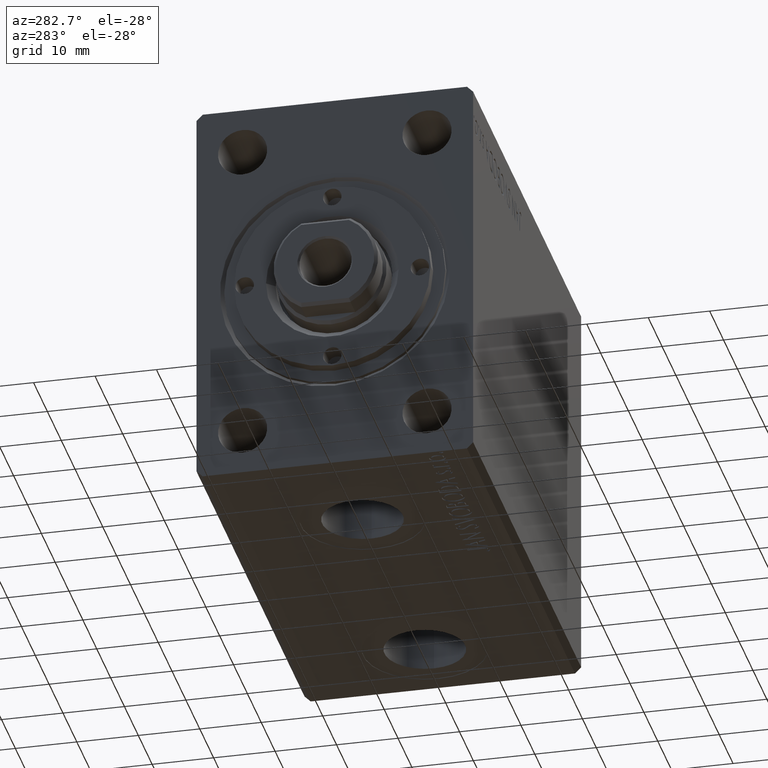
[diagram: clean part render]
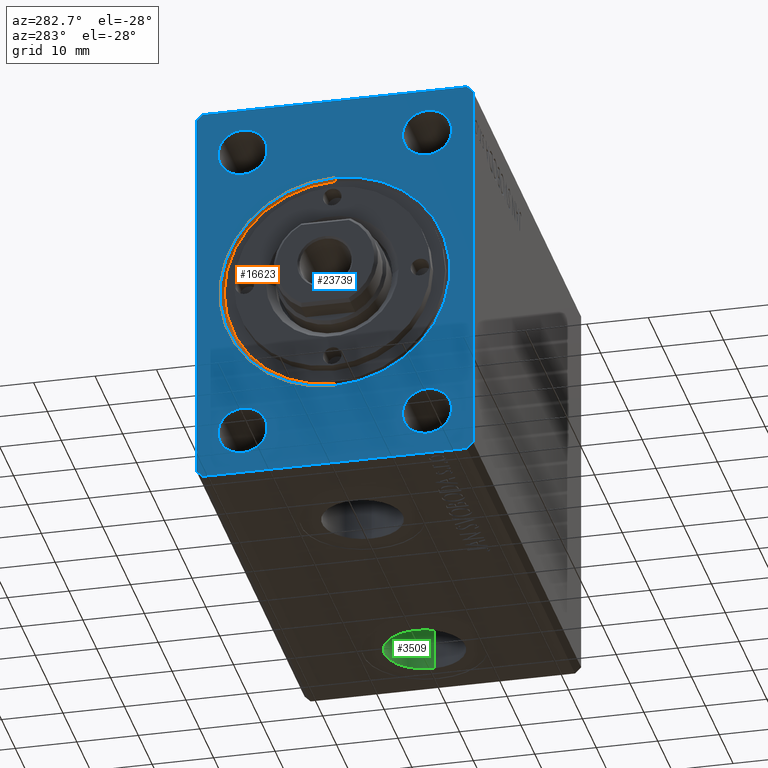
[diagram: same view with three faces highlighted in distinct colors, each labeled with its STEP entity id]
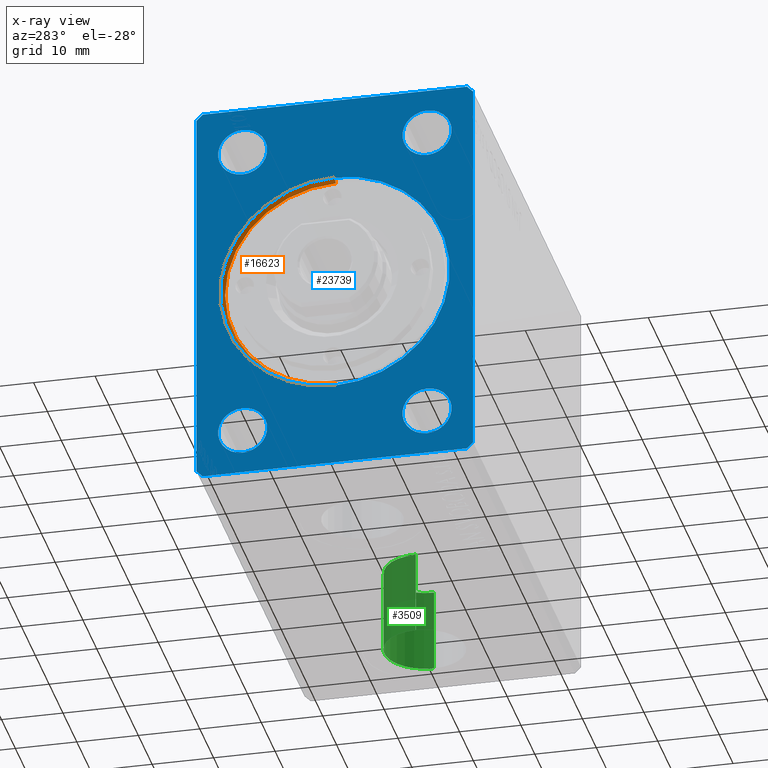
[diagram: x-ray of the same camera — body ghosted, the three highlighted faces saturated]
A machine part, auxiliary view with three faces highlighted in distinct colors.
The next image is the same camera in x-ray (body ghosted, the three faces saturated) — at least one of them is partly hidden behind the body in this view.
Their STEP definitions:

[orange] entity #16623 — the highlighted conical surface has half-angle 45 deg.
#3 = AXIS2_PLACEMENT_3D ( 'NONE', #34715, #3695, #40977 ) ;
#888 = EDGE_LOOP ( 'NONE', ( #7754, #41149, #21707, #6130 ) ) ;
#2691 = VERTEX_POINT ( 'NONE', #36314 ) ;
#2772 = EDGE_CURVE ( 'NONE', #35912, #2691, #23535, .T. ) ;
#2957 = DIRECTION ( 'NONE',  ( -0.7071067811865510144, 0.000000000000000000, 0.7071067811865441310 ) ) ;
#3695 = DIRECTION ( 'NONE',  ( -1.000000000000000000, 0.000000000000000000, 0.000000000000000000 ) ) ;
#4703 = VECTOR ( 'NONE', #2957, 999.9999999999998863 ) ;
#6104 = CONICAL_SURFACE ( 'NONE', #31068, 18.00000000000000000, 0.7853981633974433940 ) ;
#6130 = ORIENTED_EDGE ( 'NONE', *, *, #39234, .F. ) ;
#6763 = CARTESIAN_POINT ( 'NONE',  ( 0.000000000000000000, 2.290089514405561154E-15, -18.70000000000008811 ) ) ;
#6790 = VERTEX_POINT ( 'NONE', #6763 ) ;
#7562 = CIRCLE ( 'NONE', #19001, 18.70000000000008811 ) ;
#7754 = ORIENTED_EDGE ( 'NONE', *, *, #19633, .F. ) ;
#9519 = DIRECTION ( 'NONE',  ( -0.7071067811865510144, 8.659560562354890950E-17, -0.7071067811865441310 ) ) ;
#12979 = DIRECTION ( 'NONE',  ( 0.000000000000000000, 0.000000000000000000, 1.000000000000000000 ) ) ;
#13848 = DIRECTION ( 'NONE',  ( 0.000000000000000000, 0.000000000000000000, -1.000000000000000000 ) ) ;
#16340 = FACE_OUTER_BOUND ( 'NONE', #888, .T. ) ;
#16623 = ADVANCED_FACE ( 'NONE', ( #16340 ), #6104, .F. ) ;
#17648 = VECTOR ( 'NONE', #9519, 999.9999999999998863 ) ;
#17666 = DIRECTION ( 'NONE',  ( 1.000000000000000000, 0.000000000000000000, 0.000000000000000000 ) ) ;
#19001 = AXIS2_PLACEMENT_3D ( 'NONE', #27694, #17666, #13848 ) ;
#19633 = EDGE_CURVE ( 'NONE', #2691, #6790, #26502, .T. ) ;
#20164 = LINE ( 'NONE', #44021, #4703 ) ;
#21707 = ORIENTED_EDGE ( 'NONE', *, *, #33471, .T. ) ;
#22176 = CARTESIAN_POINT ( 'NONE',  ( 0.7000000000000963229, 0.000000000000000000, 18.00000000000000000 ) ) ;
#23535 = CIRCLE ( 'NONE', #3, 18.00000000000000000 ) ;
#26502 = LINE ( 'NONE', #40107, #17648 ) ;
#27694 = CARTESIAN_POINT ( 'NONE',  ( 0.000000000000000000, 0.000000000000000000, 0.000000000000000000 ) ) ;
#30161 = CARTESIAN_POINT ( 'NONE',  ( 0.7000000000000963229, 0.000000000000000000, 0.000000000000000000 ) ) ;
#31068 = AXIS2_PLACEMENT_3D ( 'NONE', #30161, #43122, #12979 ) ;
#33471 = EDGE_CURVE ( 'NONE', #35912, #38205, #20164, .T. ) ;
#34715 = CARTESIAN_POINT ( 'NONE',  ( 0.7000000000000963229, 0.000000000000000000, 0.000000000000000000 ) ) ;
#35093 = CARTESIAN_POINT ( 'NONE',  ( 0.000000000000000000, 0.000000000000000000, 18.70000000000008811 ) ) ;
#35912 = VERTEX_POINT ( 'NONE', #22176 ) ;
#36314 = CARTESIAN_POINT ( 'NONE',  ( 0.7000000000000963229, 2.204364238465235033E-15, -18.00000000000000000 ) ) ;
#38205 = VERTEX_POINT ( 'NONE', #35093 ) ;
#39234 = EDGE_CURVE ( 'NONE', #6790, #38205, #7562, .T. ) ;
#40107 = CARTESIAN_POINT ( 'NONE',  ( 0.7000000000000963229, 2.204364238465235428E-15, -18.00000000000000000 ) ) ;
#40977 = DIRECTION ( 'NONE',  ( 0.000000000000000000, 0.000000000000000000, -1.000000000000000000 ) ) ;
#41149 = ORIENTED_EDGE ( 'NONE', *, *, #2772, .F. ) ;
#43122 = DIRECTION ( 'NONE',  ( -1.000000000000000000, 0.000000000000000000, 0.000000000000000000 ) ) ;
#44021 = CARTESIAN_POINT ( 'NONE',  ( 0.7000000000000963229, 0.000000000000000000, 18.00000000000000000 ) ) ;

[blue] entity #23739 — the highlighted planar face has unit normal (1, 0, 0).
#118 = CARTESIAN_POINT ( 'NONE',  ( 0.000000000000000000, 0.000000000000000000, 0.000000000000000000 ) ) ;
#334 = FACE_BOUND ( 'NONE', #24444, .T. ) ;
#582 = VECTOR ( 'NONE', #3223, 1000.000000000000114 ) ;
#600 = VERTEX_POINT ( 'NONE', #13166 ) ;
#866 = CARTESIAN_POINT ( 'NONE',  ( 3.061616997868395467E-16, 15.00000000000000355, -28.99999999999999289 ) ) ;
#1064 = AXIS2_PLACEMENT_3D ( 'NONE', #22381, #19914, #16780 ) ;
#1082 = AXIS2_PLACEMENT_3D ( 'NONE', #41085, #17448, #13641 ) ;
#1187 = AXIS2_PLACEMENT_3D ( 'NONE', #28367, #41077, #38167 ) ;
#1215 = CARTESIAN_POINT ( 'NONE',  ( 3.061616997868395467E-16, -14.99999999999999645, -20.99999999999999645 ) ) ;
#1762 = ORIENTED_EDGE ( 'NONE', *, *, #23473, .F. ) ;
#2799 = VERTEX_POINT ( 'NONE', #21124 ) ;
#2877 = CARTESIAN_POINT ( 'NONE',  ( 3.061616997868395467E-16, 15.00000000000000355, 29.00000000000000000 ) ) ;
#3086 = VERTEX_POINT ( 'NONE', #12316 ) ;
#3223 = DIRECTION ( 'NONE',  ( 0.000000000000000000, -0.7071067811865474617, -0.7071067811865474617 ) ) ;
#3683 = DIRECTION ( 'NONE',  ( 1.000000000000000000, 0.000000000000000000, 0.000000000000000000 ) ) ;
#3935 = ORIENTED_EDGE ( 'NONE', *, *, #13893, .F. ) ;
#4341 = DIRECTION ( 'NONE',  ( 1.000000000000000000, 0.000000000000000000, 0.000000000000000000 ) ) ;
#4347 = DIRECTION ( 'NONE',  ( 0.000000000000000000, 0.000000000000000000, -1.000000000000000000 ) ) ;
#4355 = VERTEX_POINT ( 'NONE', #866 ) ;
#4561 = DIRECTION ( 'NONE',  ( 0.000000000000000000, 0.000000000000000000, 1.000000000000000000 ) ) ;
#4751 = CARTESIAN_POINT ( 'NONE',  ( 0.000000000000000000, 22.49999999999999645, 31.50000000000000000 ) ) ;
#5457 = EDGE_CURVE ( 'NONE', #27663, #12399, #18638, .T. ) ;
#6122 = CIRCLE ( 'NONE', #14726, 18.70000000000008811 ) ;
#6308 = VERTEX_POINT ( 'NONE', #23802 ) ;
#6322 = ORIENTED_EDGE ( 'NONE', *, *, #17687, .F. ) ;
#6763 = CARTESIAN_POINT ( 'NONE',  ( 0.000000000000000000, 2.290089514405561154E-15, -18.70000000000008811 ) ) ;
#6782 = EDGE_CURVE ( 'NONE', #38367, #6308, #19973, .T. ) ;
#6790 = VERTEX_POINT ( 'NONE', #6763 ) ;
#7029 = FACE_BOUND ( 'NONE', #36456, .T. ) ;
#7356 = CARTESIAN_POINT ( 'NONE',  ( 0.000000000000000000, -22.50000000000001421, -31.50000000000000711 ) ) ;
#7562 = CIRCLE ( 'NONE', #19001, 18.70000000000008811 ) ;
#7700 = FACE_OUTER_BOUND ( 'NONE', #12949, .T. ) ;
#7925 = CARTESIAN_POINT ( 'NONE',  ( 3.061616997868395467E-16, 15.00000000000000355, 25.00000000000000000 ) ) ;
#8878 = ORIENTED_EDGE ( 'NONE', *, *, #19403, .F. ) ;
#9938 = VECTOR ( 'NONE', #31114, 1000.000000000000114 ) ;
#10459 = DIRECTION ( 'NONE',  ( 0.000000000000000000, -1.000000000000000000, 0.000000000000000000 ) ) ;
#11037 = FACE_BOUND ( 'NONE', #39060, .T. ) ;
#11252 = CARTESIAN_POINT ( 'NONE',  ( 0.000000000000000000, -22.50000000000001421, -31.50000000000000711 ) ) ;
#11668 = DIRECTION ( 'NONE',  ( 0.000000000000000000, -0.7071067811865474617, 0.7071067811865474617 ) ) ;
#12053 = DIRECTION ( 'NONE',  ( 0.000000000000000000, 1.000000000000000000, 1.613696256722610912E-16 ) ) ;
#12316 = CARTESIAN_POINT ( 'NONE',  ( 3.061616997868395467E-16, -14.99999999999999645, 20.99999999999999645 ) ) ;
#12399 = VERTEX_POINT ( 'NONE', #40901 ) ;
#12568 = AXIS2_PLACEMENT_3D ( 'NONE', #41622, #34032, #38266 ) ;
#12614 = DIRECTION ( 'NONE',  ( -1.000000000000000000, -0.000000000000000000, -0.000000000000000000 ) ) ;
#12842 = LINE ( 'NONE', #13506, #582 ) ;
#12916 = LINE ( 'NONE', #13361, #25308 ) ;
#12949 = EDGE_LOOP ( 'NONE', ( #25440, #36404, #17697, #29635, #32516, #38451, #17000, #8878 ) ) ;
#13166 = CARTESIAN_POINT ( 'NONE',  ( 0.000000000000000000, 22.49999999999999645, 31.50000000000000000 ) ) ;
#13351 = VECTOR ( 'NONE', #10459, 1000.000000000000000 ) ;
#13361 = CARTESIAN_POINT ( 'NONE',  ( 0.000000000000000000, 22.49999999999999645, -31.50000000000000000 ) ) ;
#13506 = CARTESIAN_POINT ( 'NONE',  ( 0.000000000000000000, -21.50000000000001421, 32.50000000000000000 ) ) ;
#13641 = DIRECTION ( 'NONE',  ( 0.000000000000000000, 0.000000000000000000, 1.000000000000000000 ) ) ;
#13848 = DIRECTION ( 'NONE',  ( 0.000000000000000000, 0.000000000000000000, -1.000000000000000000 ) ) ;
#13893 = EDGE_CURVE ( 'NONE', #33147, #2799, #33126, .T. ) ;
#14164 = AXIS2_PLACEMENT_3D ( 'NONE', #118, #3683, #4347 ) ;
#14230 = CARTESIAN_POINT ( 'NONE',  ( 0.000000000000000000, -21.50000000000001421, 32.50000000000000000 ) ) ;
#14726 = AXIS2_PLACEMENT_3D ( 'NONE', #18430, #4341, #32015 ) ;
#14898 = DIRECTION ( 'NONE',  ( 0.000000000000000000, 0.000000000000000000, 1.000000000000000000 ) ) ;
#15036 = LINE ( 'NONE', #4751, #20372 ) ;
#15741 = AXIS2_PLACEMENT_3D ( 'NONE', #7925, #20889, #4561 ) ;
#16017 = CIRCLE ( 'NONE', #1082, 4.000000000000000000 ) ;
#16150 = CIRCLE ( 'NONE', #1187, 4.000000000000000000 ) ;
#16780 = DIRECTION ( 'NONE',  ( 0.000000000000000000, 0.000000000000000000, 1.000000000000000000 ) ) ;
#16935 = VECTOR ( 'NONE', #20088, 1000.000000000000000 ) ;
#17000 = ORIENTED_EDGE ( 'NONE', *, *, #22959, .F. ) ;
#17448 = DIRECTION ( 'NONE',  ( -1.000000000000000000, -0.000000000000000000, -0.000000000000000000 ) ) ;
#17666 = DIRECTION ( 'NONE',  ( 1.000000000000000000, 0.000000000000000000, 0.000000000000000000 ) ) ;
#17687 = EDGE_CURVE ( 'NONE', #2799, #33147, #33224, .T. ) ;
#17697 = ORIENTED_EDGE ( 'NONE', *, *, #6782, .F. ) ;
#17720 = CIRCLE ( 'NONE', #42641, 4.000000000000000000 ) ;
#18430 = CARTESIAN_POINT ( 'NONE',  ( 0.000000000000000000, 0.000000000000000000, 0.000000000000000000 ) ) ;
#18638 = CIRCLE ( 'NONE', #15741, 4.000000000000000000 ) ;
#19001 = AXIS2_PLACEMENT_3D ( 'NONE', #27694, #17666, #13848 ) ;
#19403 = EDGE_CURVE ( 'NONE', #31410, #42877, #37474, .T. ) ;
#19523 = DIRECTION ( 'NONE',  ( 0.000000000000000000, 0.7071067811865474617, 0.7071067811865474617 ) ) ;
#19914 = DIRECTION ( 'NONE',  ( -1.000000000000000000, -0.000000000000000000, -0.000000000000000000 ) ) ;
#19973 = LINE ( 'NONE', #26434, #28636 ) ;
#20088 = DIRECTION ( 'NONE',  ( 0.000000000000000000, 5.507058653894625853E-17, -1.000000000000000000 ) ) ;
#20372 = VECTOR ( 'NONE', #11668, 1000.000000000000114 ) ;
#20467 = CIRCLE ( 'NONE', #12568, 4.000000000000000000 ) ;
#20726 = DIRECTION ( 'NONE',  ( -1.000000000000000000, -0.000000000000000000, -0.000000000000000000 ) ) ;
#20889 = DIRECTION ( 'NONE',  ( -1.000000000000000000, -0.000000000000000000, -0.000000000000000000 ) ) ;
#21124 = CARTESIAN_POINT ( 'NONE',  ( 3.061616997868395467E-16, -14.99999999999999645, -28.99999999999999645 ) ) ;
#21223 = CARTESIAN_POINT ( 'NONE',  ( 0.000000000000000000, 21.49999999999999645, -32.50000000000000000 ) ) ;
#22381 = CARTESIAN_POINT ( 'NONE',  ( 3.061616997868395467E-16, -14.99999999999999645, -24.99999999999999645 ) ) ;
#22959 = EDGE_CURVE ( 'NONE', #42877, #26148, #12842, .T. ) ;
#22963 = EDGE_CURVE ( 'NONE', #42193, #3086, #17720, .T. ) ;
#23013 = VERTEX_POINT ( 'NONE', #36499 ) ;
#23071 = ORIENTED_EDGE ( 'NONE', *, *, #40524, .F. ) ;
#23433 = LINE ( 'NONE', #37030, #16935 ) ;
#23473 = EDGE_CURVE ( 'NONE', #26345, #4355, #29133, .T. ) ;
#23739 = ADVANCED_FACE ( 'NONE', ( #334, #11037, #24678, #24239, #7029, #7700 ), #34935, .F. ) ;
#23802 = CARTESIAN_POINT ( 'NONE',  ( 0.000000000000000000, 22.49999999999999645, -31.50000000000000000 ) ) ;
#23886 = EDGE_LOOP ( 'NONE', ( #1762, #23071 ) ) ;
#24072 = VECTOR ( 'NONE', #12053, 1000.000000000000000 ) ;
#24163 = CARTESIAN_POINT ( 'NONE',  ( 3.061616997868395467E-16, -14.99999999999999645, -24.99999999999999645 ) ) ;
#24239 = FACE_BOUND ( 'NONE', #38139, .T. ) ;
#24444 = EDGE_LOOP ( 'NONE', ( #32492, #31898 ) ) ;
#24499 = CARTESIAN_POINT ( 'NONE',  ( 3.061616997868395467E-16, 15.00000000000000355, -24.99999999999999289 ) ) ;
#24678 = FACE_BOUND ( 'NONE', #23886, .T. ) ;
#25308 = VECTOR ( 'NONE', #36368, 1000.000000000000000 ) ;
#25440 = ORIENTED_EDGE ( 'NONE', *, *, #31625, .F. ) ;
#25855 = VERTEX_POINT ( 'NONE', #7356 ) ;
#26148 = VERTEX_POINT ( 'NONE', #38482 ) ;
#26229 = EDGE_CURVE ( 'NONE', #25855, #23013, #41385, .T. ) ;
#26345 = VERTEX_POINT ( 'NONE', #43266 ) ;
#26434 = CARTESIAN_POINT ( 'NONE',  ( 0.000000000000000000, 21.49999999999999645, -32.50000000000000000 ) ) ;
#27663 = VERTEX_POINT ( 'NONE', #2877 ) ;
#27694 = CARTESIAN_POINT ( 'NONE',  ( 0.000000000000000000, 0.000000000000000000, 0.000000000000000000 ) ) ;
#28367 = CARTESIAN_POINT ( 'NONE',  ( 3.061616997868395467E-16, -14.99999999999999645, 24.99999999999999645 ) ) ;
#28636 = VECTOR ( 'NONE', #19523, 1000.000000000000114 ) ;
#29133 = CIRCLE ( 'NONE', #38395, 4.000000000000000000 ) ;
#29251 = LINE ( 'NONE', #42638, #24072 ) ;
#29635 = ORIENTED_EDGE ( 'NONE', *, *, #36944, .F. ) ;
#30617 = EDGE_CURVE ( 'NONE', #12399, #27663, #16017, .T. ) ;
#30864 = EDGE_CURVE ( 'NONE', #6308, #600, #12916, .T. ) ;
#31114 = DIRECTION ( 'NONE',  ( 0.000000000000000000, 0.7071067811865451302, -0.7071067811865500152 ) ) ;
#31410 = VERTEX_POINT ( 'NONE', #36474 ) ;
#31625 = EDGE_CURVE ( 'NONE', #600, #31410, #15036, .T. ) ;
#31898 = ORIENTED_EDGE ( 'NONE', *, *, #30617, .F. ) ;
#32015 = DIRECTION ( 'NONE',  ( 0.000000000000000000, 0.000000000000000000, -1.000000000000000000 ) ) ;
#32492 = ORIENTED_EDGE ( 'NONE', *, *, #5457, .F. ) ;
#32516 = ORIENTED_EDGE ( 'NONE', *, *, #26229, .F. ) ;
#33126 = CIRCLE ( 'NONE', #1064, 4.000000000000000000 ) ;
#33147 = VERTEX_POINT ( 'NONE', #1215 ) ;
#33224 = CIRCLE ( 'NONE', #43932, 4.000000000000000000 ) ;
#34032 = DIRECTION ( 'NONE',  ( -1.000000000000000000, -0.000000000000000000, -0.000000000000000000 ) ) ;
#34096 = EDGE_CURVE ( 'NONE', #38205, #6790, #6122, .T. ) ;
#34406 = DIRECTION ( 'NONE',  ( 0.000000000000000000, 0.000000000000000000, 1.000000000000000000 ) ) ;
#34935 = PLANE ( 'NONE',  #14164 ) ;
#35093 = CARTESIAN_POINT ( 'NONE',  ( 0.000000000000000000, 0.000000000000000000, 18.70000000000008811 ) ) ;
#35155 = EDGE_CURVE ( 'NONE', #3086, #42193, #16150, .T. ) ;
#36368 = DIRECTION ( 'NONE',  ( 0.000000000000000000, 0.000000000000000000, 1.000000000000000000 ) ) ;
#36404 = ORIENTED_EDGE ( 'NONE', *, *, #30864, .F. ) ;
#36456 = EDGE_LOOP ( 'NONE', ( #40885, #39198 ) ) ;
#36474 = CARTESIAN_POINT ( 'NONE',  ( 0.000000000000000000, 21.49999999999999645, 32.50000000000000000 ) ) ;
#36499 = CARTESIAN_POINT ( 'NONE',  ( 0.000000000000000000, -21.50000000000001776, -32.50000000000000711 ) ) ;
#36710 = DIRECTION ( 'NONE',  ( 0.000000000000000000, 0.000000000000000000, 1.000000000000000000 ) ) ;
#36876 = ORIENTED_EDGE ( 'NONE', *, *, #35155, .F. ) ;
#36944 = EDGE_CURVE ( 'NONE', #23013, #38367, #29251, .T. ) ;
#37030 = CARTESIAN_POINT ( 'NONE',  ( 0.000000000000000000, -22.50000000000001776, 31.50000000000000000 ) ) ;
#37080 = EDGE_CURVE ( 'NONE', #26148, #25855, #23433, .T. ) ;
#37474 = LINE ( 'NONE', #37703, #13351 ) ;
#37703 = CARTESIAN_POINT ( 'NONE',  ( 0.000000000000000000, 21.49999999999999645, 32.50000000000000000 ) ) ;
#37763 = DIRECTION ( 'NONE',  ( -1.000000000000000000, -0.000000000000000000, -0.000000000000000000 ) ) ;
#38139 = EDGE_LOOP ( 'NONE', ( #43467, #36876 ) ) ;
#38167 = DIRECTION ( 'NONE',  ( 0.000000000000000000, 0.000000000000000000, 1.000000000000000000 ) ) ;
#38205 = VERTEX_POINT ( 'NONE', #35093 ) ;
#38266 = DIRECTION ( 'NONE',  ( 0.000000000000000000, 0.000000000000000000, 1.000000000000000000 ) ) ;
#38367 = VERTEX_POINT ( 'NONE', #21223 ) ;
#38395 = AXIS2_PLACEMENT_3D ( 'NONE', #24499, #20726, #14898 ) ;
#38451 = ORIENTED_EDGE ( 'NONE', *, *, #37080, .F. ) ;
#38482 = CARTESIAN_POINT ( 'NONE',  ( 0.000000000000000000, -22.50000000000001776, 31.50000000000000000 ) ) ;
#38987 = CARTESIAN_POINT ( 'NONE',  ( 3.061616997868395467E-16, -14.99999999999999645, 28.99999999999999645 ) ) ;
#39060 = EDGE_LOOP ( 'NONE', ( #3935, #6322 ) ) ;
#39198 = ORIENTED_EDGE ( 'NONE', *, *, #39234, .T. ) ;
#39234 = EDGE_CURVE ( 'NONE', #6790, #38205, #7562, .T. ) ;
#40524 = EDGE_CURVE ( 'NONE', #4355, #26345, #20467, .T. ) ;
#40885 = ORIENTED_EDGE ( 'NONE', *, *, #34096, .T. ) ;
#40901 = CARTESIAN_POINT ( 'NONE',  ( 3.061616997868395467E-16, 15.00000000000000355, 21.00000000000000000 ) ) ;
#41077 = DIRECTION ( 'NONE',  ( -1.000000000000000000, -0.000000000000000000, -0.000000000000000000 ) ) ;
#41085 = CARTESIAN_POINT ( 'NONE',  ( 3.061616997868395467E-16, 15.00000000000000355, 25.00000000000000000 ) ) ;
#41385 = LINE ( 'NONE', #11252, #9938 ) ;
#41622 = CARTESIAN_POINT ( 'NONE',  ( 3.061616997868395467E-16, 15.00000000000000355, -24.99999999999999289 ) ) ;
#42193 = VERTEX_POINT ( 'NONE', #38987 ) ;
#42638 = CARTESIAN_POINT ( 'NONE',  ( 0.000000000000000000, -21.50000000000001776, -32.50000000000000711 ) ) ;
#42641 = AXIS2_PLACEMENT_3D ( 'NONE', #43631, #12614, #36710 ) ;
#42877 = VERTEX_POINT ( 'NONE', #14230 ) ;
#43266 = CARTESIAN_POINT ( 'NONE',  ( 3.061616997868395467E-16, 15.00000000000000355, -20.99999999999999289 ) ) ;
#43467 = ORIENTED_EDGE ( 'NONE', *, *, #22963, .F. ) ;
#43631 = CARTESIAN_POINT ( 'NONE',  ( 3.061616997868395467E-16, -14.99999999999999645, 24.99999999999999645 ) ) ;
#43932 = AXIS2_PLACEMENT_3D ( 'NONE', #24163, #37763, #34406 ) ;

[green] entity #3509 — the highlighted cylindrical surface (partial cylindrical patch) has radius 6.58 mm, axis along (-0, -0, -1).
#1474 = DIRECTION ( 'NONE',  ( -0.000000000000000000, -0.000000000000000000, -1.000000000000000000 ) ) ;
#2731 = VERTEX_POINT ( 'NONE', #23131 ) ;
#3509 = ADVANCED_FACE ( 'NONE', ( #22227 ), #42739, .F. ) ;
#3787 = CARTESIAN_POINT ( 'NONE',  ( 58.42000000000000171, -2.932151633266152588E-15, -18.79999999999999716 ) ) ;
#4781 = VERTEX_POINT ( 'NONE', #30166 ) ;
#4801 = LINE ( 'NONE', #32044, #38913 ) ;
#4834 = ORIENTED_EDGE ( 'NONE', *, *, #17759, .F. ) ;
#5230 = DIRECTION ( 'NONE',  ( -1.000000000000000000, 0.000000000000000000, 0.000000000000000000 ) ) ;
#6077 = VERTEX_POINT ( 'NONE', #37010 ) ;
#6878 = AXIS2_PLACEMENT_3D ( 'NONE', #31943, #35734, #35288 ) ;
#6920 = ORIENTED_EDGE ( 'NONE', *, *, #27750, .F. ) ;
#9537 = EDGE_LOOP ( 'NONE', ( #6920, #4834, #17453, #36896 ) ) ;
#11381 = VECTOR ( 'NONE', #28128, 1000.000000000000000 ) ;
#14861 = CARTESIAN_POINT ( 'NONE',  ( 58.42000000000000171, -2.932151633266152588E-15, -32.39999999999999858 ) ) ;
#17046 = AXIS2_PLACEMENT_3D ( 'NONE', #42339, #32498, #38979 ) ;
#17453 = ORIENTED_EDGE ( 'NONE', *, *, #25760, .T. ) ;
#17759 = EDGE_CURVE ( 'NONE', #4781, #6077, #25412, .T. ) ;
#22227 = FACE_OUTER_BOUND ( 'NONE', #9537, .T. ) ;
#22851 = AXIS2_PLACEMENT_3D ( 'NONE', #35826, #25779, #5230 ) ;
#23131 = CARTESIAN_POINT ( 'NONE',  ( 71.57999999999999829, -2.126334039427193546E-15, -32.39999999999999858 ) ) ;
#23714 = EDGE_CURVE ( 'NONE', #39916, #2731, #29849, .T. ) ;
#25412 = CIRCLE ( 'NONE', #6878, 6.580000000000002736 ) ;
#25760 = EDGE_CURVE ( 'NONE', #4781, #39916, #38155, .T. ) ;
#25779 = DIRECTION ( 'NONE',  ( -0.000000000000000000, -0.000000000000000000, -1.000000000000000000 ) ) ;
#27750 = EDGE_CURVE ( 'NONE', #6077, #2731, #4801, .T. ) ;
#28128 = DIRECTION ( 'NONE',  ( -0.000000000000000000, -0.000000000000000000, -1.000000000000000000 ) ) ;
#29849 = CIRCLE ( 'NONE', #17046, 6.580000000000002736 ) ;
#30166 = CARTESIAN_POINT ( 'NONE',  ( 58.42000000000000171, -2.932151633266152588E-15, -18.79999999999999716 ) ) ;
#31943 = CARTESIAN_POINT ( 'NONE',  ( 65.00000000000000000, -2.932151633266152588E-15, -18.79999999999999716 ) ) ;
#32044 = CARTESIAN_POINT ( 'NONE',  ( 71.57999999999999829, -2.126334039427193546E-15, -18.79999999999999716 ) ) ;
#32498 = DIRECTION ( 'NONE',  ( 0.000000000000000000, 0.000000000000000000, -1.000000000000000000 ) ) ;
#35288 = DIRECTION ( 'NONE',  ( -1.000000000000000000, 0.000000000000000000, 0.000000000000000000 ) ) ;
#35734 = DIRECTION ( 'NONE',  ( 0.000000000000000000, 0.000000000000000000, -1.000000000000000000 ) ) ;
#35826 = CARTESIAN_POINT ( 'NONE',  ( 65.00000000000000000, -2.932151633266152588E-15, -18.79999999999999716 ) ) ;
#36896 = ORIENTED_EDGE ( 'NONE', *, *, #23714, .T. ) ;
#37010 = CARTESIAN_POINT ( 'NONE',  ( 71.57999999999999829, -2.126334039427193546E-15, -18.79999999999999716 ) ) ;
#38155 = LINE ( 'NONE', #3787, #11381 ) ;
#38913 = VECTOR ( 'NONE', #1474, 1000.000000000000000 ) ;
#38979 = DIRECTION ( 'NONE',  ( -1.000000000000000000, 0.000000000000000000, 0.000000000000000000 ) ) ;
#39916 = VERTEX_POINT ( 'NONE', #14861 ) ;
#42339 = CARTESIAN_POINT ( 'NONE',  ( 65.00000000000000000, -2.932151633266152588E-15, -32.39999999999999858 ) ) ;
#42739 = CYLINDRICAL_SURFACE ( 'NONE', #22851, 6.580000000000002736 ) ;